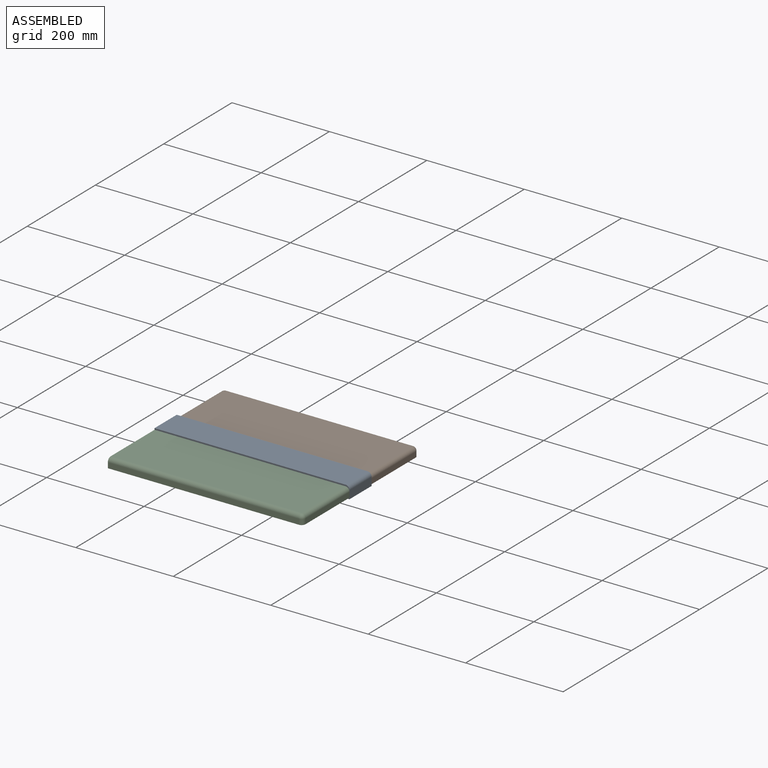
[diagram: assembled view]
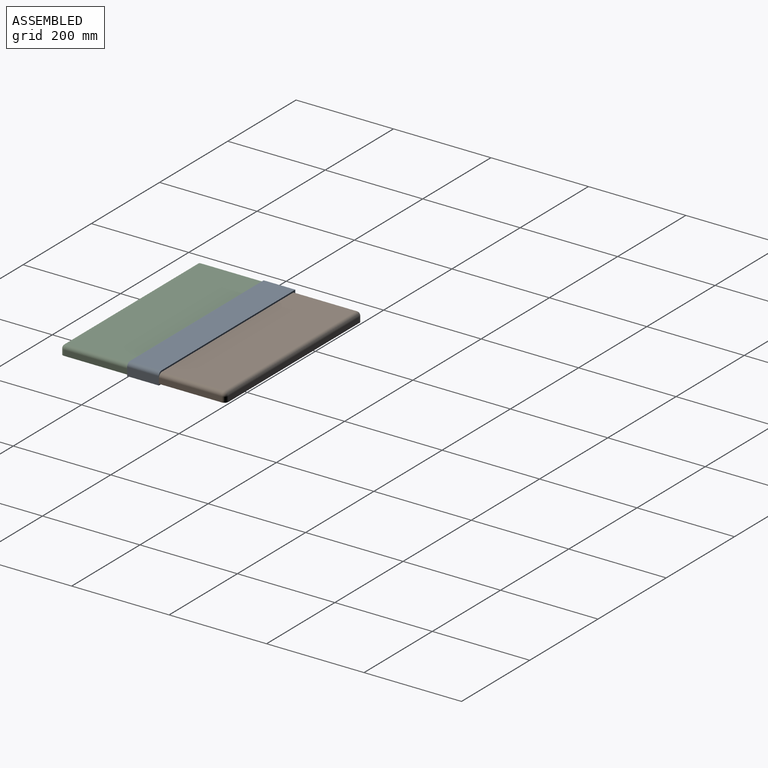
[diagram: assembled view, second angle]
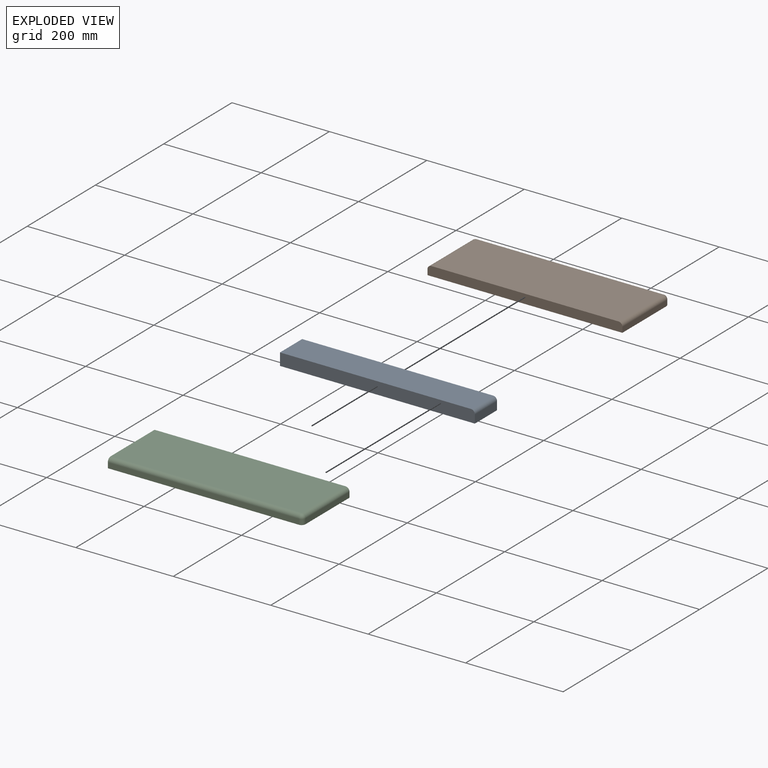
[diagram: exploded view]
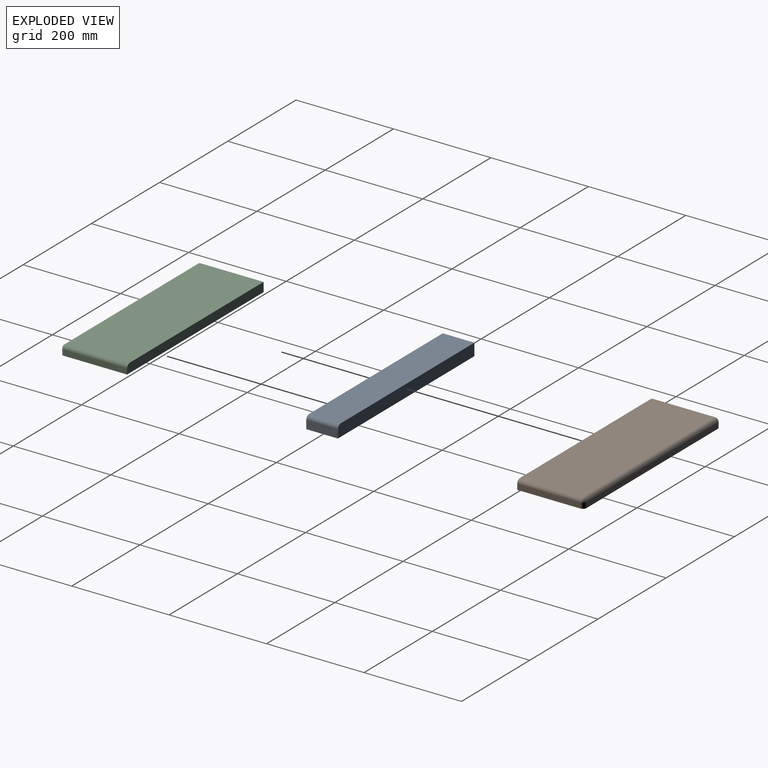
[diagram: exploded view, second angle]
ASSEMBLY  parts=3 mates=2
PART A: 7 faces, bbox 400x65x25 mm
  f0: plane 65x17mm, normal (1,0,0), area 1105mm2, adj f1,f3,f5,f6
  f1: plane 400x25mm, normal (0,1,0), area 9986.3mm2, adj f0,f2,f4,f5,f6
  f2: plane 65x25mm, normal (-1,0,0), area 1625mm2, adj f1,f3,f4,f5
  f3: plane 400x25mm, normal (0,-1,0), area 9986.3mm2, adj f0,f2,f4,f5,f6
  f4: plane 392x65mm, normal (0,0,1), area 25480mm2, adj f1,f2,f3,f6
  f5: plane 400x65mm, normal (0,0,-1), area 26000mm2, adj f0,f1,f2,f3
  f6: cylinder r=8mm len=65mm, axis (0,-1,0), area 816.8mm2, adj f0,f1,f3,f4
PART B: 13 faces, bbox 400x137x19 mm
  f0: plane 400x19mm, normal (0,-1,0), area 7572.5mm2, adj f1,f3,f4,f5,f6,f10
  f1: plane 129x11mm, normal (1,0,0), area 1419mm2, adj f0,f5,f6,f9
  f2: plane 384x11mm, normal (0,1,0), area 4224mm2, adj f5,f7,f9,f12
  f3: plane 129x11mm, normal (-1,0,0), area 1419mm2, adj f0,f5,f10,f12
  f4: plane 384x129mm, normal (0,0,1), area 49536mm2, adj f0,f6,f7,f10
  f5: plane 400x137mm, normal (0,0,-1), area 54772.5mm2, adj f0,f1,f2,f3,f9,f12
  f6: cylinder r=8mm len=129mm, axis (0,-1,0), area 1621.1mm2, adj f0,f1,f4,f8
  f7: cylinder r=8mm len=384mm, axis (1,0,0), area 4825.5mm2, adj f2,f4,f8,f11
  f8: sphere r=8mm, area 100.5mm2, adj f6,f7,f9
  f9: cylinder r=8mm len=11mm, axis (0,0,-1), area 138.2mm2, adj f1,f2,f5,f8
  f10: cylinder r=8mm len=129mm, axis (0,1,0), area 1621.1mm2, adj f0,f3,f4,f11
  f11: sphere r=8mm, area 100.5mm2, adj f7,f10,f12
  f12: cylinder r=8mm len=11mm, axis (0,0,1), area 138.2mm2, adj f2,f3,f5,f11
PART C: 10 faces, bbox 400x137x19 mm
  f0: plane 392x11mm, normal (0,-1,0), area 4312mm2, adj f3,f5,f7,f9
  f1: plane 129x11mm, normal (1,0,0), area 1419mm2, adj f2,f5,f6,f9
  f2: plane 400x19mm, normal (0,1,0), area 7586.3mm2, adj f1,f3,f4,f5,f6
  f3: plane 137x19mm, normal (-1,0,0), area 2589.3mm2, adj f0,f2,f4,f5,f7
  f4: plane 392x129mm, normal (0,0,1), area 50568mm2, adj f2,f3,f6,f7
  f5: plane 400x137mm, normal (0,0,-1), area 54786.3mm2, adj f0,f1,f2,f3,f9
  f6: cylinder r=8mm len=129mm, axis (0,-1,0), area 1621.1mm2, adj f1,f2,f4,f8
  f7: cylinder r=8mm len=392mm, axis (-1,0,0), area 4926mm2, adj f0,f3,f4,f8
  f8: sphere r=8mm, area 100.5mm2, adj f6,f7,f9
  f9: cylinder r=8mm len=11mm, axis (0,0,1), area 138.2mm2, adj f0,f1,f5,f8
PLACE A t=(-462.81,-160.25,-3)mm
PLACE B t=(75.74,-169.08,0.01)mm
PLACE C at identity
MATE fastened A.f3 <-> C.f2  axis (0,-1,0) through (-123.83,-192.75,9.49)mm
MATE fastened B.f0 <-> A.f1  axis (0,-1,0) through (-123.83,-127.75,9.49)mm
